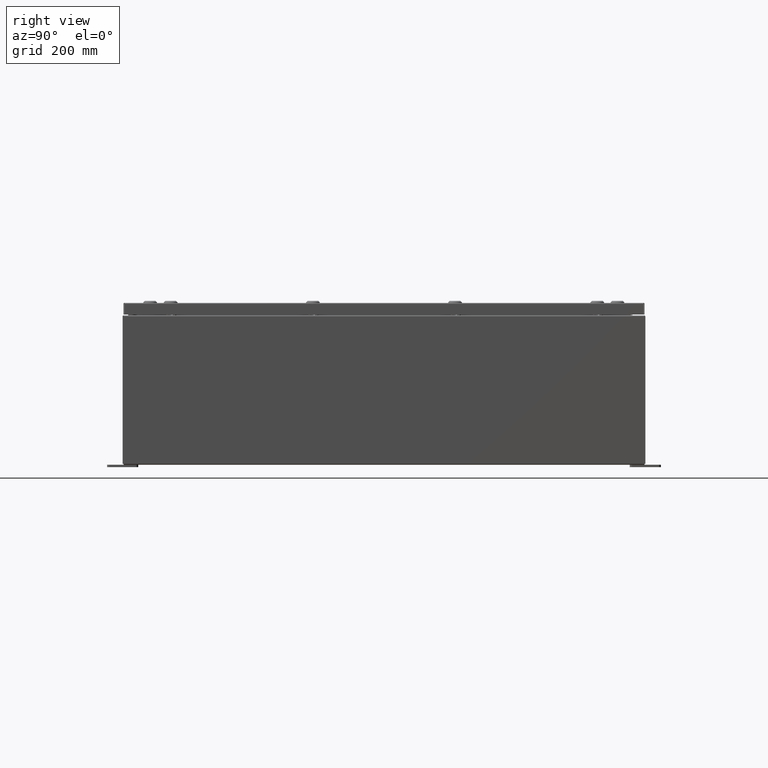
[diagram: clean part render]
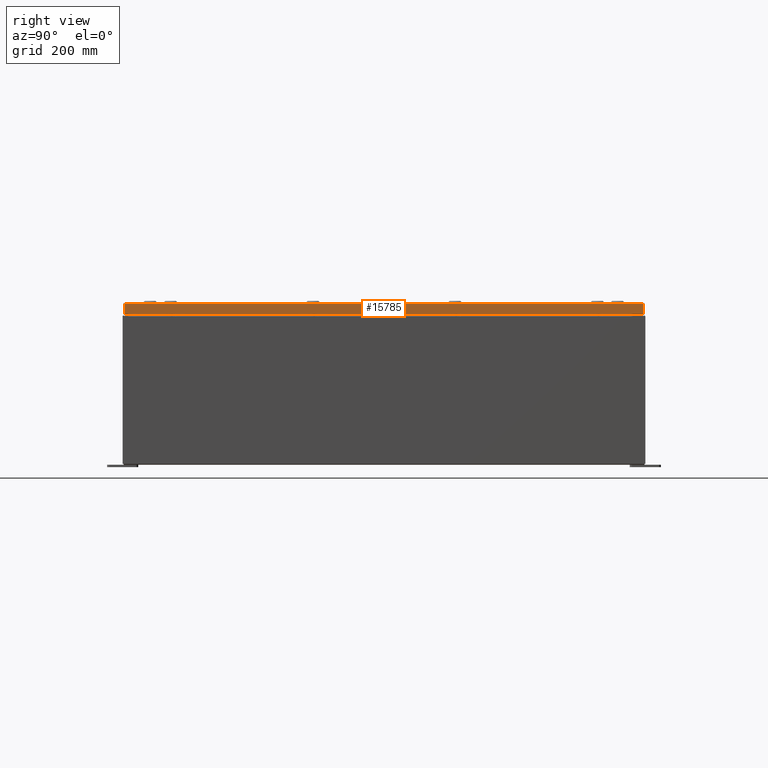
[diagram: same view with one face highlighted and labeled with its STEP entity id]
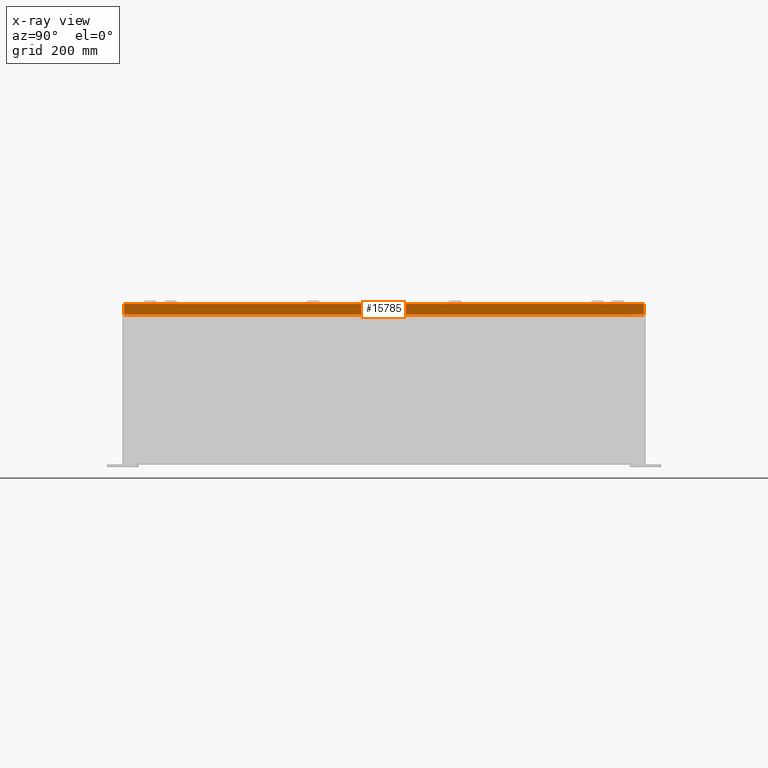
[diagram: x-ray of the same camera — body ghosted, the highlighted face saturated]
A machine part, right view. The second image highlights one B-rep face of the part: STEP entity #15785.
The next image is the same camera in x-ray: the body ghosted, the highlighted face saturated — about 0% of this face is hidden behind the body in this view.
In plain terms, the highlighted planar face has unit normal (1, 0, 0).
Its self-contained STEP definition (entity closure, byte-faithful):
#2947 = DIRECTION ( 'NONE',  ( 2.532419924601866100E-015, 0.0000000000000000000, -1.000000000000000000 ) ) ;
#3309 = ORIENTED_EDGE ( 'NONE', *, *, #19578, .F. ) ;
#4758 = LINE ( 'NONE', #24839, #20489 ) ;
#4870 = VERTEX_POINT ( 'NONE', #62941 ) ;
#5513 = CARTESIAN_POINT ( 'NONE',  ( 17.93749999999999600, -20.84865786437627100, -0.08770000000000008300 ) ) ;
#6141 = DIRECTION ( 'NONE',  ( -2.532419924601866100E-015, -6.982962677686267500E-015, 1.000000000000000000 ) ) ;
#8029 = CARTESIAN_POINT ( 'NONE',  ( 17.93749999999999600, 0.0000000000000000000, 4.568609605355753500E-014 ) ) ;
#11283 = EDGE_LOOP ( 'NONE', ( #51460, #3309, #36096, #55755 ) ) ;
#11674 = VECTOR ( 'NONE', #48928, 39.37007874015748100 ) ;
#12755 = EDGE_CURVE ( 'NONE', #59646, #60900, #15283, .T. ) ;
#15283 = LINE ( 'NONE', #59746, #55944 ) ;
#15785 = ADVANCED_FACE ( 'NONE', ( #20211 ), #61202, .T. ) ;
#15937 = AXIS2_PLACEMENT_3D ( 'NONE', #8029, #34651, #2947 ) ;
#19578 = EDGE_CURVE ( 'NONE', #4870, #59646, #66506, .T. ) ;
#20211 = FACE_OUTER_BOUND ( 'NONE', #11283, .T. ) ;
#20489 = VECTOR ( 'NONE', #62050, 39.37007874015748100 ) ;
#22440 = CARTESIAN_POINT ( 'NONE',  ( 17.93749999999999600, -20.93750000000000000, -0.9376999999999997600 ) ) ;
#24839 = CARTESIAN_POINT ( 'NONE',  ( 17.93749999999999600, 0.0000000000000000000, -0.08770000000000008300 ) ) ;
#24953 = VERTEX_POINT ( 'NONE', #47553 ) ;
#28166 = EDGE_CURVE ( 'NONE', #4870, #24953, #32833, .T. ) ;
#32833 = LINE ( 'NONE', #59060, #61141 ) ;
#34651 = DIRECTION ( 'NONE',  ( 1.000000000000000000, 0.0000000000000000000, 2.532419924601866100E-015 ) ) ;
#36096 = ORIENTED_EDGE ( 'NONE', *, *, #28166, .T. ) ;
#47553 = CARTESIAN_POINT ( 'NONE',  ( 17.93749999999999600, 20.84865786437626800, -0.08770000000000008300 ) ) ;
#48928 = DIRECTION ( 'NONE',  ( 0.0000000000000000000, -1.000000000000000000, 0.0000000000000000000 ) ) ;
#51460 = ORIENTED_EDGE ( 'NONE', *, *, #12755, .F. ) ;
#55755 = ORIENTED_EDGE ( 'NONE', *, *, #68762, .T. ) ;
#55944 = VECTOR ( 'NONE', #65098, 39.37007874015748100 ) ;
#59060 = CARTESIAN_POINT ( 'NONE',  ( 17.93749999999999600, 20.84865786437627100, 1.912714958003473400E-013 ) ) ;
#59646 = VERTEX_POINT ( 'NONE', #65753 ) ;
#59746 = CARTESIAN_POINT ( 'NONE',  ( 17.93749999999999600, -20.84865786437627100, -0.07469999999999980800 ) ) ;
#60900 = VERTEX_POINT ( 'NONE', #5513 ) ;
#61141 = VECTOR ( 'NONE', #6141, 39.37007874015748100 ) ;
#61202 = PLANE ( 'NONE',  #15937 ) ;
#62050 = DIRECTION ( 'NONE',  ( 0.0000000000000000000, -1.000000000000000000, 0.0000000000000000000 ) ) ;
#62941 = CARTESIAN_POINT ( 'NONE',  ( 17.93749999999999600, 20.84865786437627800, -0.9376999999999997600 ) ) ;
#65098 = DIRECTION ( 'NONE',  ( -2.532419924601866100E-015, -6.982962677686267500E-015, 1.000000000000000000 ) ) ;
#65753 = CARTESIAN_POINT ( 'NONE',  ( 17.93749999999999600, -20.84865786437626800, -0.9376999999999997600 ) ) ;
#66506 = LINE ( 'NONE', #22440, #11674 ) ;
#68762 = EDGE_CURVE ( 'NONE', #24953, #60900, #4758, .T. ) ;